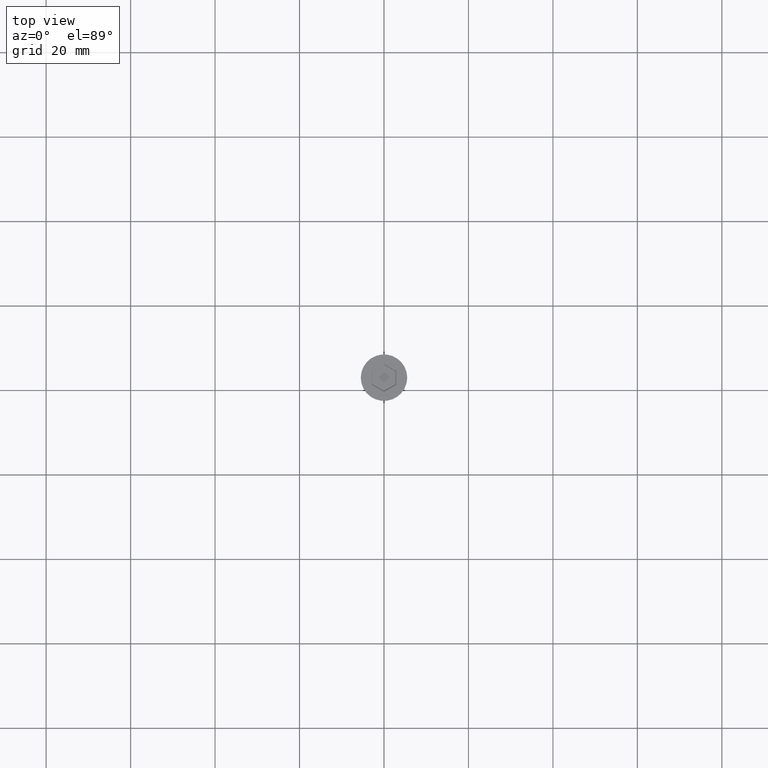
[diagram: clean part render]
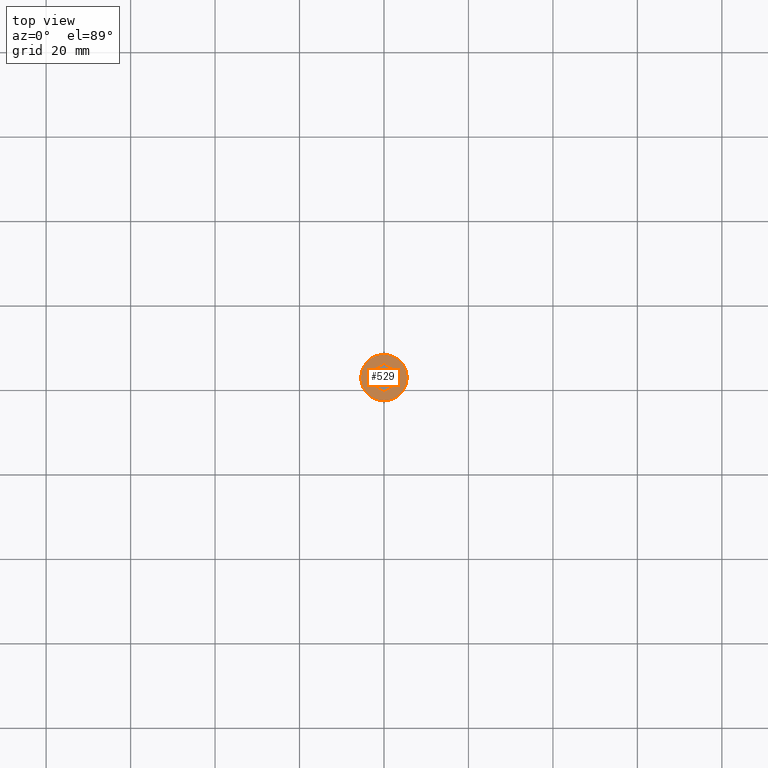
[diagram: same view with one face highlighted and labeled with its STEP entity id]
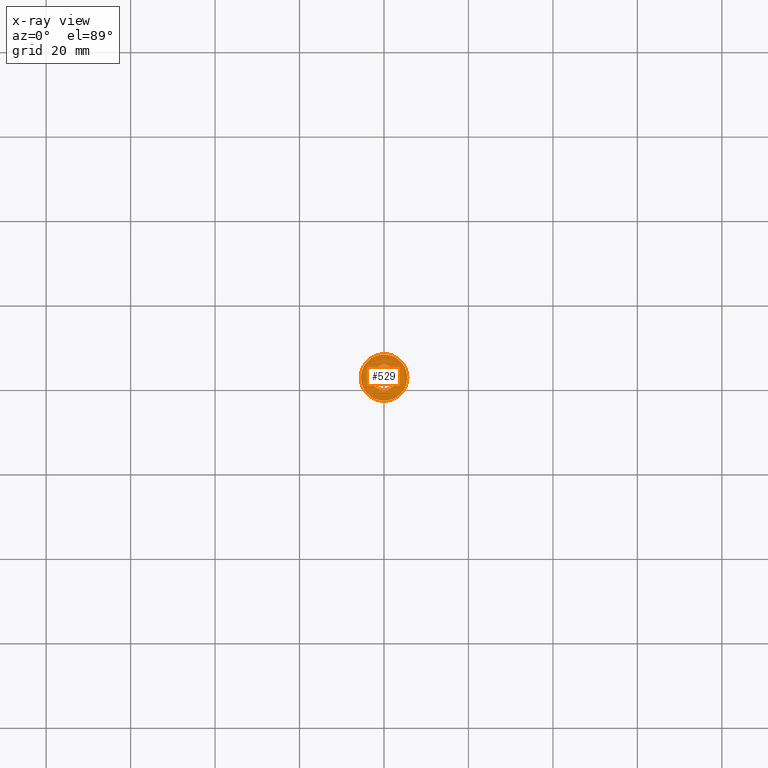
[diagram: x-ray of the same camera — body ghosted, the highlighted face saturated]
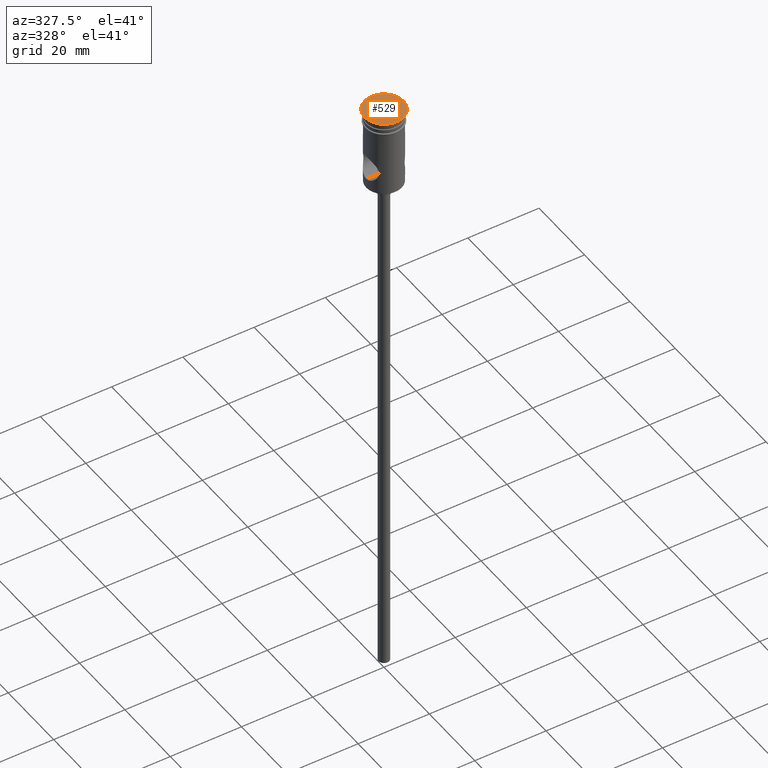
[diagram: same view with one face highlighted and labeled with its STEP entity id]
A machine part, top view. The second image highlights one B-rep face of the part: STEP entity #529.
The next image is the same camera in x-ray: the body ghosted, the highlighted face saturated — about 0% of this face is hidden behind the body in this view.
A second angle (auxiliary view) of the same face is appended — the face is thin or edge-on in the first view.
In plain terms, the highlighted planar face has unit normal (0, -0, 1).
Its self-contained STEP definition (entity closure, byte-faithful):
#12 = VECTOR ( 'NONE', #256, 1000.000000000000000 ) ;
#14 = VECTOR ( 'NONE', #930, 1000.000000000000000 ) ;
#15 = DIRECTION ( 'NONE',  ( 1.000000000000000000, 0.000000000000000000, 0.000000000000000000 ) ) ;
#49 = FACE_OUTER_BOUND ( 'NONE', #759, .T. ) ;
#53 = DIRECTION ( 'NONE',  ( 1.000000000000000000, 0.000000000000000000, 0.000000000000000000 ) ) ;
#58 = DIRECTION ( 'NONE',  ( 0.000000000000000000, 1.000000000000000000, 0.000000000000000000 ) ) ;
#64 = VECTOR ( 'NONE', #58, 1000.000000000000000 ) ;
#88 = AXIS2_PLACEMENT_3D ( 'NONE', #390, #714, #53 ) ;
#97 = EDGE_CURVE ( 'NONE', #1047, #356, #537, .T. ) ;
#112 = ORIENTED_EDGE ( 'NONE', *, *, #616, .T. ) ;
#131 = DIRECTION ( 'NONE',  ( -0.000000000000000000, -0.000000000000000000, 1.000000000000000000 ) ) ;
#132 = ORIENTED_EDGE ( 'NONE', *, *, #1425, .T. ) ;
#136 = CIRCLE ( 'NONE', #884, 5.500000000000000000 ) ;
#146 = VERTEX_POINT ( 'NONE', #1050 ) ;
#150 = LINE ( 'NONE', #713, #14 ) ;
#168 = CARTESIAN_POINT ( 'NONE',  ( -2.899999999999994138, -1.674315780649910934, 0.000000000000000000 ) ) ;
#202 = AXIS2_PLACEMENT_3D ( 'NONE', #829, #840, #1272 ) ;
#203 = CARTESIAN_POINT ( 'NONE',  ( -2.799999999999997158, -1.732050807568871864, 0.000000000000000000 ) ) ;
#215 = VERTEX_POINT ( 'NONE', #951 ) ;
#251 = EDGE_CURVE ( 'NONE', #215, #146, #471, .T. ) ;
#256 = DIRECTION ( 'NONE',  ( 0.8660254037844387076, 0.4999999999999998890, 0.000000000000000000 ) ) ;
#269 = CARTESIAN_POINT ( 'NONE',  ( 2.899999999999992362, -1.558845726811989296, 0.000000000000000000 ) ) ;
#300 = PLANE ( 'NONE',  #202 ) ;
#356 = VERTEX_POINT ( 'NONE', #1156 ) ;
#379 = VECTOR ( 'NONE', #1161, 1000.000000000000000 ) ;
#390 = CARTESIAN_POINT ( 'NONE',  ( 0.000000000000000000, 0.000000000000000000, 0.000000000000000000 ) ) ;
#392 = ORIENTED_EDGE ( 'NONE', *, *, #624, .T. ) ;
#424 = ORIENTED_EDGE ( 'NONE', *, *, #920, .T. ) ;
#464 = VERTEX_POINT ( 'NONE', #168 ) ;
#471 = LINE ( 'NONE', #915, #12 ) ;
#473 = ORIENTED_EDGE ( 'NONE', *, *, #606, .T. ) ;
#498 = CARTESIAN_POINT ( 'NONE',  ( -5.500000000000000000, 6.735557395310442023E-16, 0.000000000000000000 ) ) ;
#529 = ADVANCED_FACE ( 'NONE', ( #738, #49 ), #300, .T. ) ;
#537 = LINE ( 'NONE', #1214, #928 ) ;
#548 = EDGE_LOOP ( 'NONE', ( #132, #424, #748, #1140, #473, #874 ) ) ;
#606 = EDGE_CURVE ( 'NONE', #1019, #1047, #1270, .T. ) ;
#616 = EDGE_CURVE ( 'NONE', #698, #1155, #715, .T. ) ;
#624 = EDGE_CURVE ( 'NONE', #1155, #698, #136, .T. ) ;
#651 = LINE ( 'NONE', #203, #719 ) ;
#698 = VERTEX_POINT ( 'NONE', #1220 ) ;
#713 = CARTESIAN_POINT ( 'NONE',  ( 2.799999999999996270, 1.732050807568872086, 0.000000000000000000 ) ) ;
#714 = DIRECTION ( 'NONE',  ( -0.000000000000000000, -0.000000000000000000, 1.000000000000000000 ) ) ;
#715 = CIRCLE ( 'NONE', #88, 5.500000000000000000 ) ;
#719 = VECTOR ( 'NONE', #1116, 1000.000000000000114 ) ;
#738 = FACE_BOUND ( 'NONE', #548, .T. ) ;
#748 = ORIENTED_EDGE ( 'NONE', *, *, #251, .T. ) ;
#759 = EDGE_LOOP ( 'NONE', ( #112, #392 ) ) ;
#776 = CARTESIAN_POINT ( 'NONE',  ( 2.899999999999992362, -1.674315780649911822, 0.000000000000000000 ) ) ;
#829 = CARTESIAN_POINT ( 'NONE',  ( 0.000000000000000000, 0.000000000000000000, 0.000000000000000000 ) ) ;
#840 = DIRECTION ( 'NONE',  ( 0.000000000000000000, -0.000000000000000000, 1.000000000000000000 ) ) ;
#874 = ORIENTED_EDGE ( 'NONE', *, *, #97, .T. ) ;
#881 = CARTESIAN_POINT ( 'NONE',  ( 2.899999999999992806, 1.674315780649911378, 0.000000000000000000 ) ) ;
#884 = AXIS2_PLACEMENT_3D ( 'NONE', #1245, #131, #15 ) ;
#915 = CARTESIAN_POINT ( 'NONE',  ( -0.09999999999999764633, 3.290896534380861382, 0.000000000000000000 ) ) ;
#920 = EDGE_CURVE ( 'NONE', #464, #215, #1404, .T. ) ;
#928 = VECTOR ( 'NONE', #1179, 1000.000000000000000 ) ;
#930 = DIRECTION ( 'NONE',  ( 0.8660254037844387076, -0.4999999999999998335, 0.000000000000000000 ) ) ;
#951 = CARTESIAN_POINT ( 'NONE',  ( -2.899999999999994138, 1.674315780649911600, 0.000000000000000000 ) ) ;
#962 = CARTESIAN_POINT ( 'NONE',  ( -2.899999999999994138, 1.558845726811988852, 0.000000000000000000 ) ) ;
#1019 = VERTEX_POINT ( 'NONE', #881 ) ;
#1047 = VERTEX_POINT ( 'NONE', #776 ) ;
#1050 = CARTESIAN_POINT ( 'NONE',  ( -9.683804684061200344E-16, 3.348631561299821868, 0.000000000000000000 ) ) ;
#1116 = DIRECTION ( 'NONE',  ( -0.8660254037844385966, 0.5000000000000001110, 0.000000000000000000 ) ) ;
#1140 = ORIENTED_EDGE ( 'NONE', *, *, #1144, .T. ) ;
#1144 = EDGE_CURVE ( 'NONE', #146, #1019, #150, .T. ) ;
#1155 = VERTEX_POINT ( 'NONE', #498 ) ;
#1156 = CARTESIAN_POINT ( 'NONE',  ( -4.552601062339046804E-16, -3.348631561299821868, 0.000000000000000000 ) ) ;
#1161 = DIRECTION ( 'NONE',  ( -1.391032035867740017E-16, -1.000000000000000000, 0.000000000000000000 ) ) ;
#1179 = DIRECTION ( 'NONE',  ( -0.8660254037844387076, -0.4999999999999998890, 0.000000000000000000 ) ) ;
#1214 = CARTESIAN_POINT ( 'NONE',  ( 0.09999999999999654998, -3.290896534380861382, 0.000000000000000000 ) ) ;
#1220 = CARTESIAN_POINT ( 'NONE',  ( 5.500000000000000000, 0.000000000000000000, 0.000000000000000000 ) ) ;
#1245 = CARTESIAN_POINT ( 'NONE',  ( 0.000000000000000000, 0.000000000000000000, 0.000000000000000000 ) ) ;
#1270 = LINE ( 'NONE', #269, #379 ) ;
#1272 = DIRECTION ( 'NONE',  ( 1.000000000000000000, 0.000000000000000000, 0.000000000000000000 ) ) ;
#1404 = LINE ( 'NONE', #962, #64 ) ;
#1425 = EDGE_CURVE ( 'NONE', #356, #464, #651, .T. ) ;